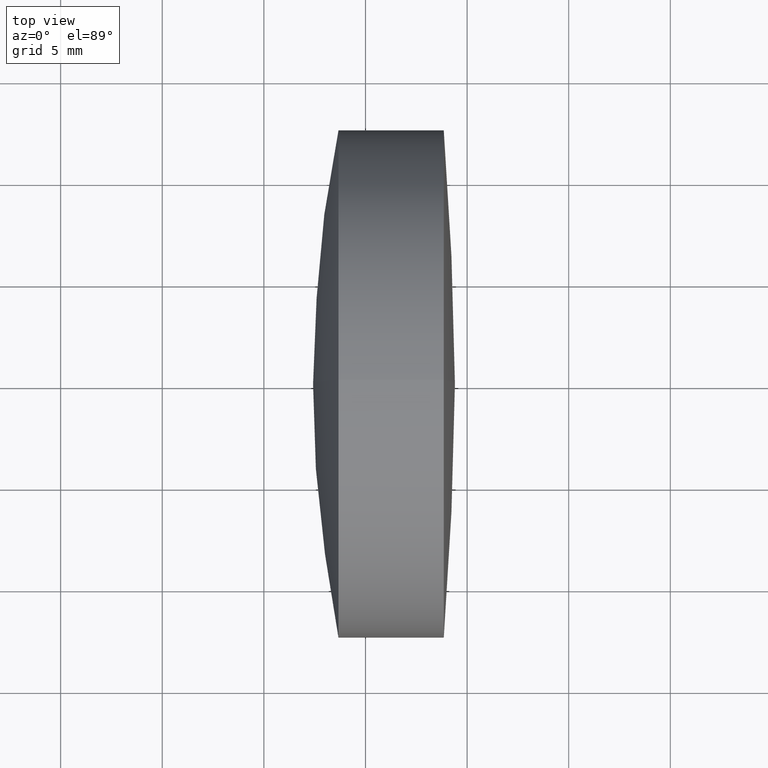
[diagram: clean part render]
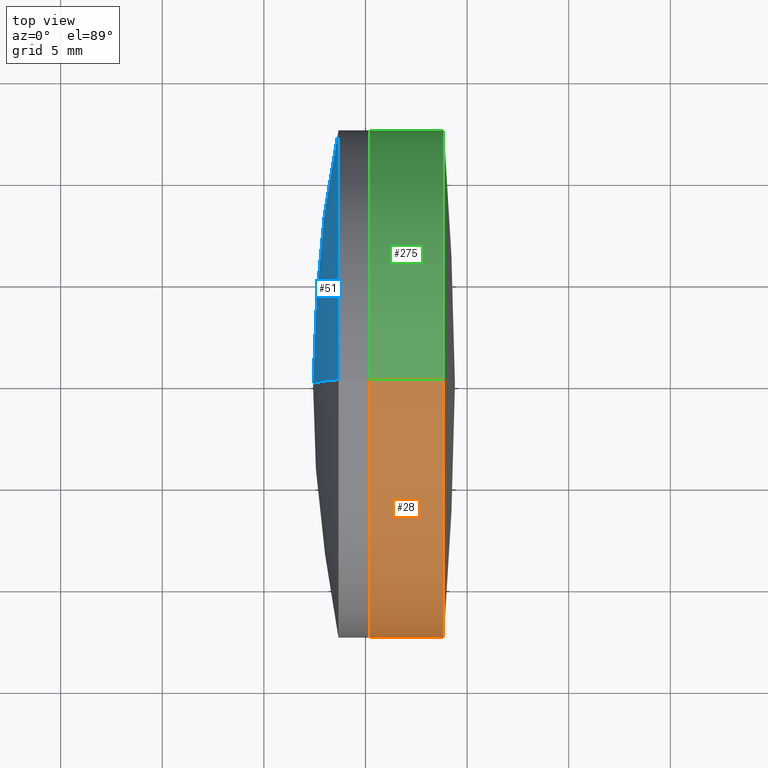
[diagram: same view with three faces highlighted in distinct colors, each labeled with its STEP entity id]
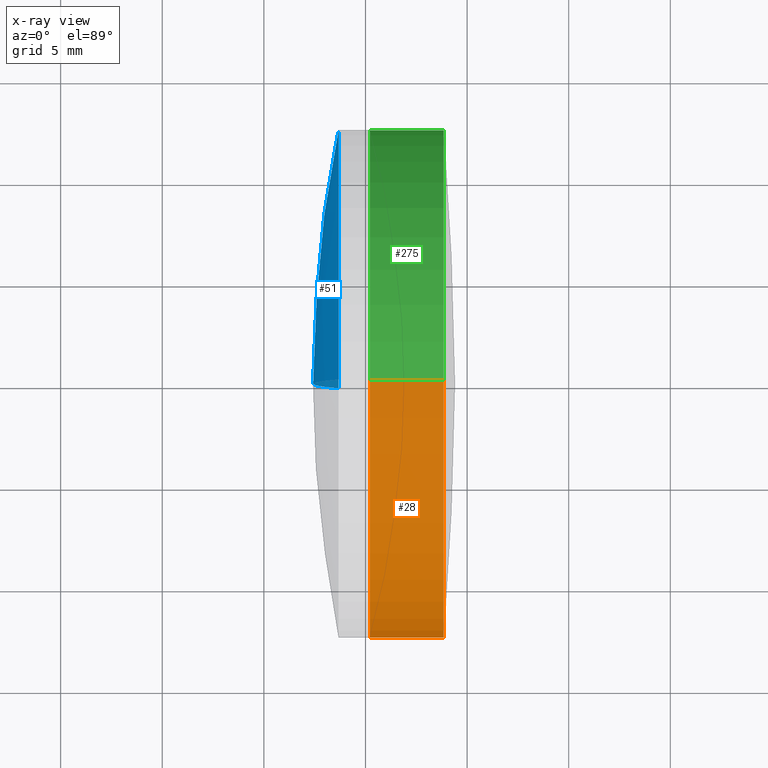
[diagram: x-ray of the same camera — body ghosted, the three highlighted faces saturated]
A machine part, top view with three faces highlighted in distinct colors.
The next image is the same camera in x-ray (body ghosted, the three faces saturated) — at least one of them is partly hidden behind the body in this view.
Their STEP definitions:

[orange] entity #28 — the highlighted cylindrical surface (partial cylindrical patch) has radius 12.5 mm, axis along (-1, -0, -0).
#9 = EDGE_LOOP ( 'NONE', ( #298, #135, #102, #222 ) ) ;
#28 = ADVANCED_FACE ( 'NONE', ( #323 ), #138, .T. ) ;
#37 = CARTESIAN_POINT ( 'NONE',  ( 60.20977468710700000, 0.0000000000000000000, 12.49999999999997700 ) ) ;
#38 = AXIS2_PLACEMENT_3D ( 'NONE', #216, #84, #225 ) ;
#57 = CARTESIAN_POINT ( 'NONE',  ( 63.85238398709587700, 0.0000000000000000000, 12.49999999999997200 ) ) ;
#84 = DIRECTION ( 'NONE',  ( -1.000000000000000000, -0.0000000000000000000, -0.0000000000000000000 ) ) ;
#100 = CARTESIAN_POINT ( 'NONE',  ( -0.5519199926577972300, 0.0000000000000000000, 0.0000000000000000000 ) ) ;
#102 = ORIENTED_EDGE ( 'NONE', *, *, #256, .T. ) ;
#112 = EDGE_CURVE ( 'NONE', #287, #218, #300, .T. ) ;
#114 = VERTEX_POINT ( 'NONE', #207 ) ;
#119 = LINE ( 'NONE', #161, #342 ) ;
#135 = ORIENTED_EDGE ( 'NONE', *, *, #302, .T. ) ;
#138 = CYLINDRICAL_SURFACE ( 'NONE', #192, 12.49999999999997500 ) ;
#149 = VERTEX_POINT ( 'NONE', #57 ) ;
#153 = DIRECTION ( 'NONE',  ( -1.000000000000000000, -0.0000000000000000000, -0.0000000000000000000 ) ) ;
#157 = DIRECTION ( 'NONE',  ( -1.000000000000000000, -0.0000000000000000000, -0.0000000000000000000 ) ) ;
#161 = CARTESIAN_POINT ( 'NONE',  ( -0.5519199926577972300, 0.0000000000000000000, 12.49999999999997500 ) ) ;
#169 = CIRCLE ( 'NONE', #255, 12.49999999999997200 ) ;
#179 = CARTESIAN_POINT ( 'NONE',  ( 60.20977468710700000, 1.530808498934188600E-015, -12.49999999999997700 ) ) ;
#192 = AXIS2_PLACEMENT_3D ( 'NONE', #100, #316, #336 ) ;
#195 = VECTOR ( 'NONE', #259, 1000.000000000000000 ) ;
#207 = CARTESIAN_POINT ( 'NONE',  ( 63.85238398709587700, 1.530808498934188200E-015, -12.49999999999997200 ) ) ;
#216 = CARTESIAN_POINT ( 'NONE',  ( 60.20977468710700000, 0.0000000000000000000, 0.0000000000000000000 ) ) ;
#218 = VERTEX_POINT ( 'NONE', #37 ) ;
#222 = ORIENTED_EDGE ( 'NONE', *, *, #112, .F. ) ;
#225 = DIRECTION ( 'NONE',  ( 0.0000000000000000000, 0.0000000000000000000, 1.000000000000000000 ) ) ;
#238 = EDGE_CURVE ( 'NONE', #114, #287, #326, .T. ) ;
#255 = AXIS2_PLACEMENT_3D ( 'NONE', #260, #157, #318 ) ;
#256 = EDGE_CURVE ( 'NONE', #149, #218, #119, .T. ) ;
#259 = DIRECTION ( 'NONE',  ( -1.000000000000000000, -0.0000000000000000000, -0.0000000000000000000 ) ) ;
#260 = CARTESIAN_POINT ( 'NONE',  ( 63.85238398709587700, 0.0000000000000000000, 0.0000000000000000000 ) ) ;
#287 = VERTEX_POINT ( 'NONE', #179 ) ;
#298 = ORIENTED_EDGE ( 'NONE', *, *, #238, .F. ) ;
#300 = CIRCLE ( 'NONE', #38, 12.49999999999997900 ) ;
#302 = EDGE_CURVE ( 'NONE', #114, #149, #169, .T. ) ;
#311 = CARTESIAN_POINT ( 'NONE',  ( -0.5519199926577972300, 1.530808498934188400E-015, -12.49999999999997500 ) ) ;
#316 = DIRECTION ( 'NONE',  ( -1.000000000000000000, -0.0000000000000000000, -0.0000000000000000000 ) ) ;
#318 = DIRECTION ( 'NONE',  ( 0.0000000000000000000, 0.0000000000000000000, 1.000000000000000000 ) ) ;
#323 = FACE_OUTER_BOUND ( 'NONE', #9, .T. ) ;
#326 = LINE ( 'NONE', #311, #195 ) ;
#336 = DIRECTION ( 'NONE',  ( 0.0000000000000000000, 0.0000000000000000000, 1.000000000000000000 ) ) ;
#342 = VECTOR ( 'NONE', #153, 1000.000000000000000 ) ;

[blue] entity #51 — the highlighted spherical surface has radius 63.146 mm.
#1 = EDGE_LOOP ( 'NONE', ( #308, #330, #291 ) ) ;
#15 = FACE_OUTER_BOUND ( 'NONE', #1, .T. ) ;
#21 = CIRCLE ( 'NONE', #253, 63.14600000000000800 ) ;
#40 = DIRECTION ( 'NONE',  ( 0.0000000000000000000, 0.0000000000000000000, 1.000000000000000000 ) ) ;
#46 = CIRCLE ( 'NONE', #273, 12.49999999999998900 ) ;
#51 = ADVANCED_FACE ( 'NONE', ( #15 ), #196, .T. ) ;
#68 = CARTESIAN_POINT ( 'NONE',  ( 57.42166897357473200, 0.0000000000000000000, -2.514284219101401300E-014 ) ) ;
#92 = CARTESIAN_POINT ( 'NONE',  ( 120.5676689735747400, 0.0000000000000000000, -2.900941952996195400E-014 ) ) ;
#103 = CARTESIAN_POINT ( 'NONE',  ( 58.67124487653986600, 1.530808498934192300E-015, -12.50000000000003700 ) ) ;
#104 = DIRECTION ( 'NONE',  ( 0.0000000000000000000, -1.000000000000000000, 0.0000000000000000000 ) ) ;
#106 = CIRCLE ( 'NONE', #303, 63.14600000000000800 ) ;
#108 = EDGE_CURVE ( 'NONE', #159, #110, #106, .T. ) ;
#110 = VERTEX_POINT ( 'NONE', #68 ) ;
#115 = DIRECTION ( 'NONE',  ( -1.000000000000000000, -0.0000000000000000000, -0.0000000000000000000 ) ) ;
#127 = EDGE_CURVE ( 'NONE', #142, #159, #46, .T. ) ;
#131 = DIRECTION ( 'NONE',  ( 0.0000000000000000000, 1.000000000000000000, 0.0000000000000000000 ) ) ;
#142 = VERTEX_POINT ( 'NONE', #254 ) ;
#159 = VERTEX_POINT ( 'NONE', #103 ) ;
#171 = AXIS2_PLACEMENT_3D ( 'NONE', #92, #131, #185 ) ;
#172 = DIRECTION ( 'NONE',  ( -0.0000000000000000000, 1.000000000000000000, 1.224646799147353200E-016 ) ) ;
#185 = DIRECTION ( 'NONE',  ( 0.0000000000000000000, 0.0000000000000000000, 1.000000000000000000 ) ) ;
#196 = SPHERICAL_SURFACE ( 'NONE', #171, 63.14600000000000800 ) ;
#220 = EDGE_CURVE ( 'NONE', #142, #110, #21, .T. ) ;
#227 = DIRECTION ( 'NONE',  ( 0.0000000000000000000, -1.224646799147353200E-016, 1.000000000000000000 ) ) ;
#243 = DIRECTION ( 'NONE',  ( 0.0000000000000000000, 0.0000000000000000000, -1.000000000000000000 ) ) ;
#253 = AXIS2_PLACEMENT_3D ( 'NONE', #271, #104, #243 ) ;
#254 = CARTESIAN_POINT ( 'NONE',  ( 58.67124487653986600, 0.0000000000000000000, 12.50000000000000700 ) ) ;
#271 = CARTESIAN_POINT ( 'NONE',  ( 120.5676689735747400, 0.0000000000000000000, -2.900941952996195400E-014 ) ) ;
#273 = AXIS2_PLACEMENT_3D ( 'NONE', #282, #115, #40 ) ;
#282 = CARTESIAN_POINT ( 'NONE',  ( 58.67124487653985900, 0.0000000000000000000, 0.0000000000000000000 ) ) ;
#291 = ORIENTED_EDGE ( 'NONE', *, *, #220, .F. ) ;
#303 = AXIS2_PLACEMENT_3D ( 'NONE', #332, #172, #227 ) ;
#308 = ORIENTED_EDGE ( 'NONE', *, *, #127, .T. ) ;
#330 = ORIENTED_EDGE ( 'NONE', *, *, #108, .T. ) ;
#332 = CARTESIAN_POINT ( 'NONE',  ( 120.5676689735747400, 0.0000000000000000000, -2.900941952996195400E-014 ) ) ;

[green] entity #275 — the highlighted cylindrical surface (partial cylindrical patch) has radius 12.5 mm, axis along (-1, -0, -0).
#4 = AXIS2_PLACEMENT_3D ( 'NONE', #200, #98, #258 ) ;
#18 = DIRECTION ( 'NONE',  ( 0.0000000000000000000, 0.0000000000000000000, 1.000000000000000000 ) ) ;
#32 = EDGE_CURVE ( 'NONE', #218, #287, #345, .T. ) ;
#36 = FACE_OUTER_BOUND ( 'NONE', #71, .T. ) ;
#37 = CARTESIAN_POINT ( 'NONE',  ( 60.20977468710700000, 0.0000000000000000000, 12.49999999999997700 ) ) ;
#57 = CARTESIAN_POINT ( 'NONE',  ( 63.85238398709587700, 0.0000000000000000000, 12.49999999999997200 ) ) ;
#59 = ORIENTED_EDGE ( 'NONE', *, *, #32, .F. ) ;
#63 = CARTESIAN_POINT ( 'NONE',  ( 63.85238398709587700, 0.0000000000000000000, 0.0000000000000000000 ) ) ;
#69 = ORIENTED_EDGE ( 'NONE', *, *, #256, .F. ) ;
#71 = EDGE_LOOP ( 'NONE', ( #309, #219, #59, #69 ) ) ;
#91 = DIRECTION ( 'NONE',  ( -1.000000000000000000, -0.0000000000000000000, -0.0000000000000000000 ) ) ;
#98 = DIRECTION ( 'NONE',  ( -1.000000000000000000, -0.0000000000000000000, -0.0000000000000000000 ) ) ;
#114 = VERTEX_POINT ( 'NONE', #207 ) ;
#119 = LINE ( 'NONE', #161, #342 ) ;
#125 = DIRECTION ( 'NONE',  ( 0.0000000000000000000, 0.0000000000000000000, 1.000000000000000000 ) ) ;
#126 = CARTESIAN_POINT ( 'NONE',  ( 60.20977468710700000, 0.0000000000000000000, 0.0000000000000000000 ) ) ;
#137 = AXIS2_PLACEMENT_3D ( 'NONE', #126, #293, #18 ) ;
#149 = VERTEX_POINT ( 'NONE', #57 ) ;
#153 = DIRECTION ( 'NONE',  ( -1.000000000000000000, -0.0000000000000000000, -0.0000000000000000000 ) ) ;
#161 = CARTESIAN_POINT ( 'NONE',  ( -0.5519199926577972300, 0.0000000000000000000, 12.49999999999997500 ) ) ;
#164 = AXIS2_PLACEMENT_3D ( 'NONE', #63, #91, #125 ) ;
#179 = CARTESIAN_POINT ( 'NONE',  ( 60.20977468710700000, 1.530808498934188600E-015, -12.49999999999997700 ) ) ;
#195 = VECTOR ( 'NONE', #259, 1000.000000000000000 ) ;
#200 = CARTESIAN_POINT ( 'NONE',  ( -0.5519199926577972300, 0.0000000000000000000, 0.0000000000000000000 ) ) ;
#207 = CARTESIAN_POINT ( 'NONE',  ( 63.85238398709587700, 1.530808498934188200E-015, -12.49999999999997200 ) ) ;
#217 = CIRCLE ( 'NONE', #164, 12.49999999999997200 ) ;
#218 = VERTEX_POINT ( 'NONE', #37 ) ;
#219 = ORIENTED_EDGE ( 'NONE', *, *, #238, .T. ) ;
#238 = EDGE_CURVE ( 'NONE', #114, #287, #326, .T. ) ;
#247 = EDGE_CURVE ( 'NONE', #149, #114, #217, .T. ) ;
#256 = EDGE_CURVE ( 'NONE', #149, #218, #119, .T. ) ;
#258 = DIRECTION ( 'NONE',  ( 0.0000000000000000000, 0.0000000000000000000, 1.000000000000000000 ) ) ;
#259 = DIRECTION ( 'NONE',  ( -1.000000000000000000, -0.0000000000000000000, -0.0000000000000000000 ) ) ;
#261 = CYLINDRICAL_SURFACE ( 'NONE', #4, 12.49999999999997500 ) ;
#275 = ADVANCED_FACE ( 'NONE', ( #36 ), #261, .T. ) ;
#287 = VERTEX_POINT ( 'NONE', #179 ) ;
#293 = DIRECTION ( 'NONE',  ( -1.000000000000000000, -0.0000000000000000000, -0.0000000000000000000 ) ) ;
#309 = ORIENTED_EDGE ( 'NONE', *, *, #247, .T. ) ;
#311 = CARTESIAN_POINT ( 'NONE',  ( -0.5519199926577972300, 1.530808498934188400E-015, -12.49999999999997500 ) ) ;
#326 = LINE ( 'NONE', #311, #195 ) ;
#342 = VECTOR ( 'NONE', #153, 1000.000000000000000 ) ;
#345 = CIRCLE ( 'NONE', #137, 12.49999999999997900 ) ;